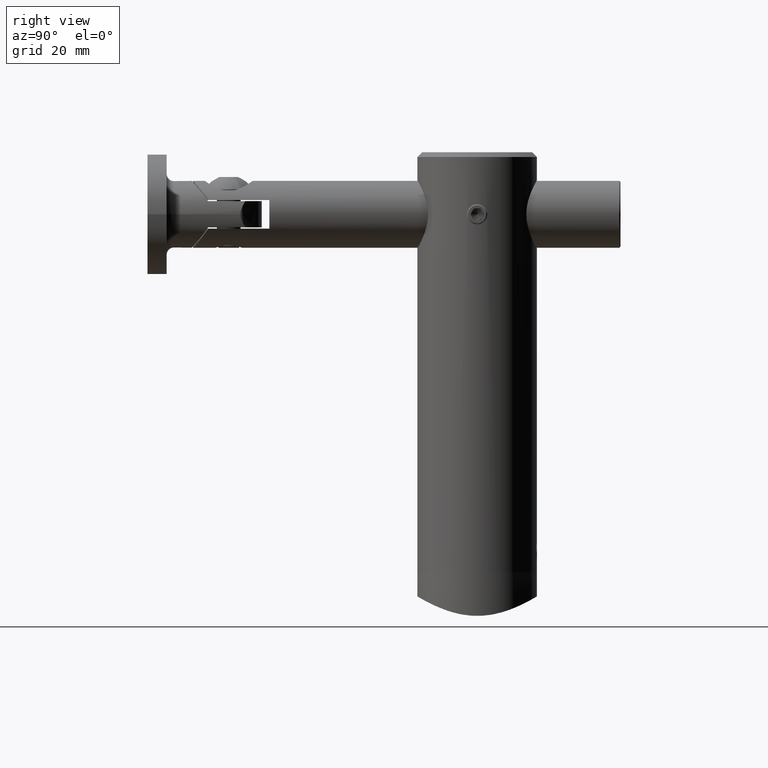
[diagram: clean part render]
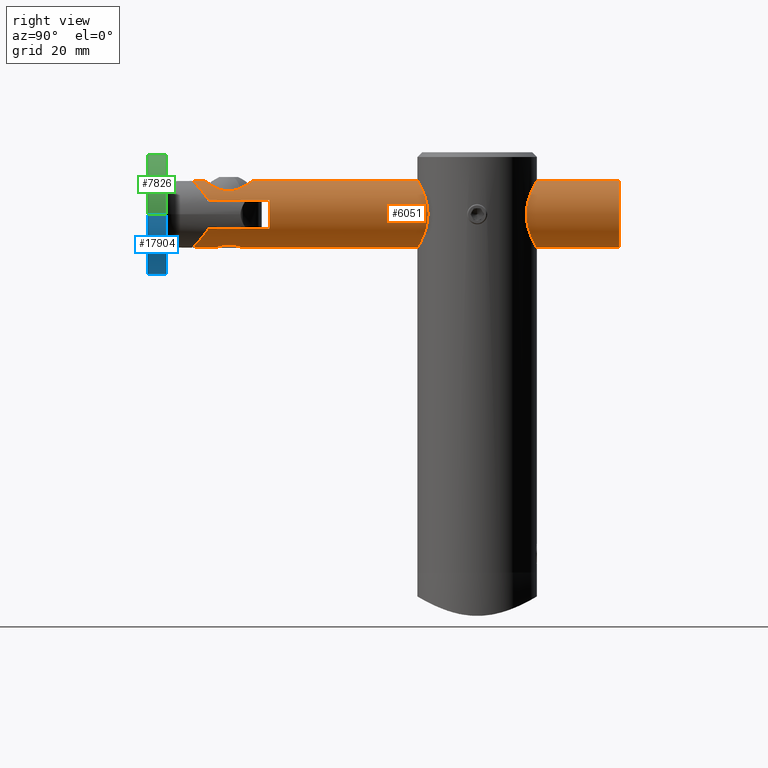
[diagram: same view with three faces highlighted in distinct colors, each labeled with its STEP entity id]
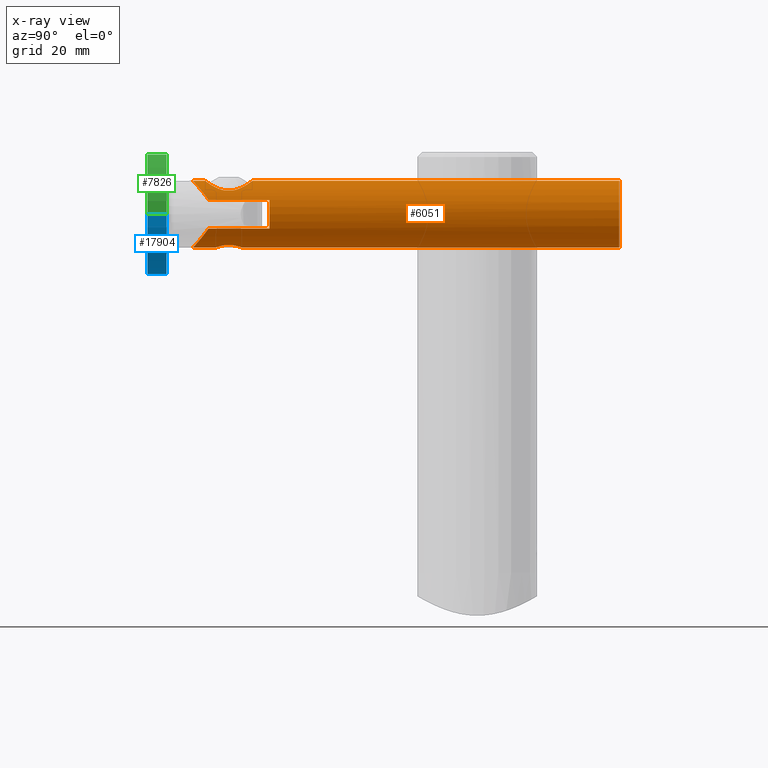
[diagram: x-ray of the same camera — body ghosted, the three highlighted faces saturated]
A machine part, right view with three faces highlighted in distinct colors.
The next image is the same camera in x-ray (body ghosted, the three faces saturated) — at least one of them is partly hidden behind the body in this view.
Their STEP definitions:

[orange] entity #6051 — the highlighted cylindrical surface (edge-blend (fillet) strip) has radius 7 mm, axis along (0, 1, -0).
#78 = CARTESIAN_POINT ( 'NONE',  ( -2.660261905348820122, 81.28017450903226404, -6.474913072020241245 ) ) ;
#250 = VECTOR ( 'NONE', #19612, 1000.000000000000000 ) ;
#344 = B_SPLINE_CURVE_WITH_KNOTS ( 'NONE', 3,
 ( #13487, #10240, #8850, #16676, #2462, #11883, #18332, #11812, #15066, #19991, #19925, #2336, #15144, #12028, #13417, #19855 ),
 .UNSPECIFIED., .F., .F.,
 ( 4, 2, 2, 2, 2, 2, 2, 4 ),
 ( 0.03923391438674807274, 0.04139867185758772106, 0.04248105059300754521, 0.04356342932842736937, 0.04464580806384720046, 0.04572818679926702462, 0.04681056553468684878, 0.04789294427010667293 ),
 .UNSPECIFIED. ) ;
#406 = CARTESIAN_POINT ( 'NONE',  ( 0.000000000000000000, 92.00000000000000000, 0.000000000000000000 ) ) ;
#540 = DIRECTION ( 'NONE',  ( -0.000000000000000000, -1.000000000000000000, -0.000000000000000000 ) ) ;
#542 = EDGE_CURVE ( 'NONE', #17161, #1582, #8996, .T. ) ;
#666 = CARTESIAN_POINT ( 'NONE',  ( -4.839560592229766200, 83.29109193951103407, 5.058218387902203794 ) ) ;
#688 = VERTEX_POINT ( 'NONE', #17183 ) ;
#860 = ORIENTED_EDGE ( 'NONE', *, *, #17682, .T. ) ;
#878 = CARTESIAN_POINT ( 'NONE',  ( -2.294863882844581315, 86.48097171074925882, 6.637556547302423837 ) ) ;
#1079 = CARTESIAN_POINT ( 'NONE',  ( -3.371989372458827017, 88.73576416458342919, 6.143546741527542210 ) ) ;
#1122 = CARTESIAN_POINT ( 'NONE',  ( -2.750000000000002665, 81.81857552232096964, -6.437196594791865678 ) ) ;
#1158 = ORIENTED_EDGE ( 'NONE', *, *, #13284, .T. ) ;
#1192 = EDGE_CURVE ( 'NONE', #8401, #9464, #19249, .T. ) ;
#1283 = CARTESIAN_POINT ( 'NONE',  ( -0.3639287912287958449, 89.49356647764057016, 6.992879130255660769 ) ) ;
#1393 = CARTESIAN_POINT ( 'NONE',  ( -2.731572210612921214, 81.63441088541318891, -6.445153679585613027 ) ) ;
#1450 = CARTESIAN_POINT ( 'NONE',  ( -2.069198651125569999, 80.17994448775027649, -6.688468078876604217 ) ) ;
#1505 = B_SPLINE_CURVE_WITH_KNOTS ( 'NONE', 3,
 ( #7192, #666, #18248, #18189, #8565, #15047, #2250, #5319, #8702, #8632, #878, #14772, #17984, #16448, #2110, #14987 ),
 .UNSPECIFIED., .F., .F.,
 ( 4, 2, 2, 2, 2, 2, 2, 4 ),
 ( 0.000000000000000000, 0.0008914626793863883849, 0.001782925358772776770, 0.002674388038159165263, 0.003565850717545553539, 0.005348776076318302770, 0.006240238755704684975, 0.007131701435091067180 ),
 .UNSPECIFIED. ) ;
#1536 = CARTESIAN_POINT ( 'NONE',  ( -2.660998049289887479, 82.71731310101976931, -6.474610218258280980 ) ) ;
#1582 = VERTEX_POINT ( 'NONE', #19484 ) ;
#1591 = CARTESIAN_POINT ( 'NONE',  ( -6.324555320336759046, 73.50000000000000000, 2.999999999999999112 ) ) ;
#1668 = DIRECTION ( 'NONE',  ( 0.000000000000000000, 1.000000000000000000, 0.000000000000000000 ) ) ;
#1826 = CARTESIAN_POINT ( 'NONE',  ( -6.192418636472707405, 86.41569640618025971, 3.278568588981354281 ) ) ;
#2110 = CARTESIAN_POINT ( 'NONE',  ( -0.2991063256262634362, 87.00000000000000000, 7.000000000000002665 ) ) ;
#2250 = CARTESIAN_POINT ( 'NONE',  ( -3.975033919775524893, 85.04545215921186241, 5.765805760156297310 ) ) ;
#2263 = EDGE_CURVE ( 'NONE', #11354, #10373, #2400, .T. ) ;
#2322 = B_SPLINE_CURVE_WITH_KNOTS ( 'NONE', 3,
 ( #9187, #12215, #2936, #10837, #14083, #2730, #20382, #17200, #20239, #7539, #9114, #10702, #7662, #6154, #10768, #5947, #12491, #15614 ),
 .UNSPECIFIED., .F., .F.,
 ( 4, 2, 2, 2, 2, 2, 2, 2, 4 ),
 ( 0.007131701435091065445, 0.008020981435921283390, 0.008910261436751500466, 0.009799541437581719278, 0.01068882143841193635, 0.01157810143924215343, 0.01246738144007237051, 0.01335666144090258758, 0.01424594144173280640 ),
 .UNSPECIFIED. ) ;
#2336 = CARTESIAN_POINT ( 'NONE',  ( -1.784236511302845996, 89.29972891008506508, -6.777766581327615114 ) ) ;
#2400 = LINE ( 'NONE', #2796, #13826 ) ;
#2411 = CARTESIAN_POINT ( 'NONE',  ( -2.750000000000002665, 82.00000000000000000, -6.437196594791864790 ) ) ;
#2427 = CARTESIAN_POINT ( 'NONE',  ( 0.000000000000000000, 92.00000000000000000, -7.000000000000000000 ) ) ;
#2462 = CARTESIAN_POINT ( 'NONE',  ( -4.914913179432341295, 87.74931631312377078, -4.994203248603346523 ) ) ;
#2474 = LINE ( 'NONE', #15922, #16352 ) ;
#2657 = CARTESIAN_POINT ( 'NONE',  ( -4.468488458371489003, 88.11276474322238528, 5.427275721216008542 ) ) ;
#2730 = CARTESIAN_POINT ( 'NONE',  ( -2.009673372085207355, 77.41248889341466111, 6.711181612046894784 ) ) ;
#2796 = CARTESIAN_POINT ( 'NONE',  ( 0.000000000000000000, 92.00000000000000000, -7.000000000000000000 ) ) ;
#2821 = ORIENTED_EDGE ( 'NONE', *, *, #7420, .T. ) ;
#2836 = CYLINDRICAL_SURFACE ( 'NONE', #17240, 7.000000000000000000 ) ;
#2873 = CARTESIAN_POINT ( 'NONE',  ( -0.7250615779018277918, 89.46813135849437515, 6.964703037725365142 ) ) ;
#2931 = CARTESIAN_POINT ( 'NONE',  ( -2.750000000000002665, 82.18156059774574373, -6.437196594791865678 ) ) ;
#2936 = CARTESIAN_POINT ( 'NONE',  ( -0.5939647591109592506, 77.02649484266727598, 6.981000427148956078 ) ) ;
#2946 = CARTESIAN_POINT ( 'NONE',  ( -6.324555320336759046, 86.22911821679221589, 2.999999999999999556 ) ) ;
#3007 = CARTESIAN_POINT ( 'NONE',  ( -6.044086803178973177, 86.60755666878344528, 3.544251768196102770 ) ) ;
#3015 = EDGE_CURVE ( 'NONE', #1582, #16491, #15297, .T. ) ;
#3141 = CARTESIAN_POINT ( 'NONE',  ( -1.820866196867617637, 84.06844623899382896, -6.760288294050407210 ) ) ;
#3211 = CARTESIAN_POINT ( 'NONE',  ( -3.948399029747518167E-20, 79.25000000000000000, -7.000000000000000000 ) ) ;
#3374 = LINE ( 'NONE', #6475, #6595 ) ;
#3460 = CARTESIAN_POINT ( 'NONE',  ( -1.002435782524943925E-14, 89.50000000000011369, 7.000000000000127010 ) ) ;
#3542 = VECTOR ( 'NONE', #13515, 1000.000000000000000 ) ;
#3821 = FACE_OUTER_BOUND ( 'NONE', #17554, .T. ) ;
#4197 = EDGE_CURVE ( 'NONE', #10373, #9182, #19224, .T. ) ;
#4610 = CARTESIAN_POINT ( 'NONE',  ( 1.208881161452609872E-16, 84.75000000000000000, -7.000000000000000000 ) ) ;
#4666 = CARTESIAN_POINT ( 'NONE',  ( -1.226554768102682935, 84.46789805624285918, -6.893754012384582630 ) ) ;
#4719 = CARTESIAN_POINT ( 'NONE',  ( -1.383155584390583837, 79.61643647624492814, -6.863676793753303862 ) ) ;
#4734 = CARTESIAN_POINT ( 'NONE',  ( -1.681583724287279979, 84.18332563320866768, -6.796730364041209782 ) ) ;
#4802 = CARTESIAN_POINT ( 'NONE',  ( -2.197163682976021271, 83.69146857855012911, -6.651366615402557692 ) ) ;
#4874 = DIRECTION ( 'NONE',  ( 0.000000000000000000, 1.000000000000000000, 0.000000000000000000 ) ) ;
#4942 = ORIENTED_EDGE ( 'NONE', *, *, #16073, .T. ) ;
#5212 = ORIENTED_EDGE ( 'NONE', *, *, #15153, .F. ) ;
#5308 = ORIENTED_EDGE ( 'NONE', *, *, #4197, .T. ) ;
#5319 = CARTESIAN_POINT ( 'NONE',  ( -3.616946265727596366, 85.46314499093718098, 5.996925081911286703 ) ) ;
#5333 = DIRECTION ( 'NONE',  ( 0.000000000000000000, 0.000000000000000000, -1.000000000000000000 ) ) ;
#5585 = CARTESIAN_POINT ( 'NONE',  ( 0.000000000000000000, 0.2499999999999863443, 0.000000000000000000 ) ) ;
#5947 = CARTESIAN_POINT ( 'NONE',  ( -4.756889550426354418, 80.43392821189311803, 5.137250767919630867 ) ) ;
#6051 = ADVANCED_FACE ( 'NONE', ( #3821 ), #2836, .T. ) ;
#6152 = CARTESIAN_POINT ( 'NONE',  ( -0.1837655311793491564, 84.75000000000000000, -7.000000000000000888 ) ) ;
#6154 = CARTESIAN_POINT ( 'NONE',  ( -4.422770578716177070, 79.65138690488552697, 5.428806269226893022 ) ) ;
#6219 = CARTESIAN_POINT ( 'NONE',  ( -1.383913447233347416, 84.38315299823167948, -6.863530507969958450 ) ) ;
#6334 = CARTESIAN_POINT ( 'NONE',  ( -1.222816899428061266, 79.53032863506213346, -6.894394375064748282 ) ) ;
#6396 = CARTESIAN_POINT ( 'NONE',  ( -0.3624502375697711276, 79.26788498787971093, -6.992914525589783103 ) ) ;
#6475 = CARTESIAN_POINT ( 'NONE',  ( -4.898979485566357539, 92.00000000000000000, 4.999999999999999112 ) ) ;
#6595 = VECTOR ( 'NONE', #1668, 1000.000000000000000 ) ;
#6737 = VERTEX_POINT ( 'NONE', #7531 ) ;
#6979 = CARTESIAN_POINT ( 'NONE',  ( 8.572527594031473190E-16, 0.2499999999999863443, 7.000000000000000000 ) ) ;
#7192 = CARTESIAN_POINT ( 'NONE',  ( -4.898979485566356651, 83.00000000000001421, 5.000000000000000000 ) ) ;
#7251 = EDGE_CURVE ( 'NONE', #11719, #688, #19944, .T. ) ;
#7420 = EDGE_CURVE ( 'NONE', #9710, #6737, #1505, .T. ) ;
#7531 = CARTESIAN_POINT ( 'NONE',  ( 8.572527598450923430E-16, 87.00000000000001421, 7.000000000000000000 ) ) ;
#7539 = CARTESIAN_POINT ( 'NONE',  ( -3.418568646372840636, 78.34067046350246244, 6.113182993975327051 ) ) ;
#7589 = CARTESIAN_POINT ( 'NONE',  ( 8.572527594031473190E-16, 92.00000000000000000, 7.000000000000000000 ) ) ;
#7662 = CARTESIAN_POINT ( 'NONE',  ( -4.135962263691839169, 79.17675732254244281, 5.650367532654112956 ) ) ;
#7707 = LINE ( 'NONE', #19267, #10678 ) ;
#7781 = CARTESIAN_POINT ( 'NONE',  ( -2.382758144454903526, 80.61554951720019346, -6.582817980364521482 ) ) ;
#7973 = CARTESIAN_POINT ( 'NONE',  ( -2.607548095123841225, 81.10774105016133717, -6.496639385793701038 ) ) ;
#8149 = LINE ( 'NONE', #7589, #20277 ) ;
#8190 = VERTEX_POINT ( 'NONE', #20156 ) ;
#8401 = VERTEX_POINT ( 'NONE', #3460 ) ;
#8565 = CARTESIAN_POINT ( 'NONE',  ( -4.425366518078629241, 84.34397634863468340, 5.426733022158265030 ) ) ;
#8611 = DIRECTION ( 'NONE',  ( -0.000000000000000000, 1.000000000000000000, -0.000000000000000000 ) ) ;
#8632 = CARTESIAN_POINT ( 'NONE',  ( -2.776700698999280625, 86.19534894629951793, 6.443739082997176126 ) ) ;
#8692 = EDGE_CURVE ( 'NONE', #11998, #17161, #344, .T. ) ;
#8702 = CARTESIAN_POINT ( 'NONE',  ( -3.418808725368912782, 85.65916681603903271, 6.113076715920836790 ) ) ;
#8850 = CARTESIAN_POINT ( 'NONE',  ( -5.732979968554462680, 86.99398891783921783, -4.063787233538065813 ) ) ;
#8977 = CARTESIAN_POINT ( 'NONE',  ( -2.448555013356692012, 89.11129496294373098, 6.567222301486645542 ) ) ;
#8996 = LINE ( 'NONE', #2427, #3542 ) ;
#9114 = CARTESIAN_POINT ( 'NONE',  ( -3.617236538122536427, 78.53717037875250639, 5.996745441797393994 ) ) ;
#9182 = VERTEX_POINT ( 'NONE', #6979 ) ;
#9187 = CARTESIAN_POINT ( 'NONE',  ( 8.572527589611736987E-16, 77.00000000000000000, 7.000000000000000000 ) ) ;
#9272 = CARTESIAN_POINT ( 'NONE',  ( 0.000000000000000000, 89.49999999999998579, -7.000000000000000000 ) ) ;
#9424 = LINE ( 'NONE', #16861, #250 ) ;
#9464 = VERTEX_POINT ( 'NONE', #2946 ) ;
#9670 = ORIENTED_EDGE ( 'NONE', *, *, #542, .T. ) ;
#9710 = VERTEX_POINT ( 'NONE', #9797 ) ;
#9797 = CARTESIAN_POINT ( 'NONE',  ( -4.898979485566356651, 83.00000000000001421, 5.000000000000000000 ) ) ;
#10240 = CARTESIAN_POINT ( 'NONE',  ( -6.060097243788924892, 86.60253540608765377, -3.557526578345540536 ) ) ;
#10373 = VERTEX_POINT ( 'NONE', #13490 ) ;
#10493 = CARTESIAN_POINT ( 'NONE',  ( -1.002435782524943925E-14, 89.50000000000011369, 7.000000000000127010 ) ) ;
#10561 = CARTESIAN_POINT ( 'NONE',  ( -2.766472260337530464, 88.99691965761564916, 6.438952564361060560 ) ) ;
#10678 = VECTOR ( 'NONE', #4874, 1000.000000000000000 ) ;
#10692 = ORIENTED_EDGE ( 'NONE', *, *, #7251, .T. ) ;
#10702 = CARTESIAN_POINT ( 'NONE',  ( -3.975101583808372308, 78.95465001076691181, 5.765754370839145437 ) ) ;
#10768 = CARTESIAN_POINT ( 'NONE',  ( -4.549074066972394803, 79.90560171560923663, 5.322148887493238334 ) ) ;
#10837 = CARTESIAN_POINT ( 'NONE',  ( -1.179668351931415504, 77.13205071261702983, 6.906196035327339722 ) ) ;
#11082 = CARTESIAN_POINT ( 'NONE',  ( -1.817296491785143076, 79.92837778867962584, -6.761258888765953046 ) ) ;
#11150 = B_SPLINE_CURVE_WITH_KNOTS ( 'NONE', 3,
 ( #16915, #1122, #1393, #78, #7973, #20492, #7781, #20430, #1450, #11082, #18780, #4719, #6334, #17383, #20361, #6396, #14124, #14191 ),
 .UNSPECIFIED., .F., .F.,
 ( 4, 2, 2, 2, 2, 2, 2, 2, 4 ),
 ( 0.004344734282260766245, 0.004887418899408002212, 0.005430103516555237313, 0.005972788133702473280, 0.006515472750849708380, 0.007058157367996944348, 0.007600841985144178581, 0.008143526602291414548, 0.008686211219438648781 ),
 .UNSPECIFIED. ) ;
#11244 = CARTESIAN_POINT ( 'NONE',  ( -4.929663724319142126, 87.75544120604618570, 5.008012638528537508 ) ) ;
#11354 = VERTEX_POINT ( 'NONE', #3211 ) ;
#11719 = VERTEX_POINT ( 'NONE', #1591 ) ;
#11811 = CARTESIAN_POINT ( 'NONE',  ( -6.324555320336759934, 86.22911821679221589, -3.000000000000000000 ) ) ;
#11812 = CARTESIAN_POINT ( 'NONE',  ( -3.662499520547849219, 88.58706227998003158, -5.974205645090258088 ) ) ;
#11883 = CARTESIAN_POINT ( 'NONE',  ( -4.448411464698285300, 88.10293658295209696, -5.413877823746929607 ) ) ;
#11906 = CARTESIAN_POINT ( 'NONE',  ( 0.000000000000000000, 73.50000000000000000, 0.000000000000000000 ) ) ;
#11998 = VERTEX_POINT ( 'NONE', #11811 ) ;
#12028 = CARTESIAN_POINT ( 'NONE',  ( -0.7253705644734330660, 89.47425646927403875, -6.971528620492262185 ) ) ;
#12078 = CARTESIAN_POINT ( 'NONE',  ( -1.432384606724566911, 89.37480022524006529, 6.861169559409958651 ) ) ;
#12149 = CARTESIAN_POINT ( 'NONE',  ( -3.661496776243679641, 88.58764268060313896, 5.974873979569122362 ) ) ;
#12215 = CARTESIAN_POINT ( 'NONE',  ( -0.2983739865412365355, 77.00000000000000000, 7.000000000000002665 ) ) ;
#12488 = CARTESIAN_POINT ( 'NONE',  ( -2.732195300017660866, 82.36132747720122893, -6.444889210782489997 ) ) ;
#12491 = CARTESIAN_POINT ( 'NONE',  ( -4.839697460131366924, 80.70957857353114662, 5.058084285293765525 ) ) ;
#12827 = CARTESIAN_POINT ( 'NONE',  ( -6.324555320336759046, 86.22911821679221589, 2.999999999999999556 ) ) ;
#12852 = AXIS2_PLACEMENT_3D ( 'NONE', #11906, #15169, #15244 ) ;
#13284 = EDGE_CURVE ( 'NONE', #688, #11998, #7707, .T. ) ;
#13410 = ORIENTED_EDGE ( 'NONE', *, *, #17619, .F. ) ;
#13417 = CARTESIAN_POINT ( 'NONE',  ( -0.3670011454034160514, 89.50000000000000000, -7.000000000000000000 ) ) ;
#13487 = CARTESIAN_POINT ( 'NONE',  ( -6.324555320336759934, 86.22911821679221589, -3.000000000000000000 ) ) ;
#13490 = CARTESIAN_POINT ( 'NONE',  ( 0.000000000000000000, 0.2499999999999863443, -7.000000000000000000 ) ) ;
#13515 = DIRECTION ( 'NONE',  ( -0.000000000000000000, -1.000000000000000000, -0.000000000000000000 ) ) ;
#13799 = EDGE_CURVE ( 'NONE', #16491, #11354, #11150, .T. ) ;
#13826 = VECTOR ( 'NONE', #20103, 1000.000000000000000 ) ;
#13953 = CARTESIAN_POINT ( 'NONE',  ( -0.9034506719393678997, 89.44921930571358359, 6.943746843708455962 ) ) ;
#14083 = CARTESIAN_POINT ( 'NONE',  ( -1.466010853969592187, 77.21096487885552051, 6.850515153504008303 ) ) ;
#14109 = ORIENTED_EDGE ( 'NONE', *, *, #8692, .T. ) ;
#14124 = CARTESIAN_POINT ( 'NONE',  ( -0.1808599344163454026, 79.25000000000002842, -7.000000000000001776 ) ) ;
#14191 = CARTESIAN_POINT ( 'NONE',  ( -3.948399029747518167E-20, 79.25000000000000000, -7.000000000000000000 ) ) ;
#14210 = CARTESIAN_POINT ( 'NONE',  ( -2.750000000000002665, 82.00000000000000000, -6.437196594791864790 ) ) ;
#14509 = DIRECTION ( 'NONE',  ( -0.000000000000000000, -1.000000000000000000, -0.000000000000000000 ) ) ;
#14772 = CARTESIAN_POINT ( 'NONE',  ( -1.468537120180438027, 86.78850453220861993, 6.850130510910550363 ) ) ;
#14813 = AXIS2_PLACEMENT_3D ( 'NONE', #5585, #8611, #16641 ) ;
#14843 = VERTEX_POINT ( 'NONE', #17010 ) ;
#14987 = CARTESIAN_POINT ( 'NONE',  ( 8.572527598450923430E-16, 87.00000000000001421, 7.000000000000000000 ) ) ;
#15047 = CARTESIAN_POINT ( 'NONE',  ( -4.136608555503009654, 84.82251015956182982, 5.649935377652886892 ) ) ;
#15066 = CARTESIAN_POINT ( 'NONE',  ( -3.372907361399431370, 88.73535340893089085, -6.143081379966544908 ) ) ;
#15144 = CARTESIAN_POINT ( 'NONE',  ( -1.433385987779158599, 89.37467737474607077, -6.861033331225378618 ) ) ;
#15153 = EDGE_CURVE ( 'NONE', #8401, #6737, #8149, .T. ) ;
#15169 = DIRECTION ( 'NONE',  ( -0.000000000000000000, -1.000000000000000000, -0.000000000000000000 ) ) ;
#15244 = DIRECTION ( 'NONE',  ( 0.000000000000000000, 0.000000000000000000, -1.000000000000000000 ) ) ;
#15297 = B_SPLINE_CURVE_WITH_KNOTS ( 'NONE', 3,
 ( #4610, #6152, #17330, #15760, #20304, #4666, #6219, #4734, #3141, #4802, #15686, #17270, #1536, #12488, #2931, #14210 ),
 .UNSPECIFIED., .F., .F.,
 ( 4, 2, 2, 2, 2, 2, 2, 4 ),
 ( 1.173165976729920230E-19, 0.0005430917852825886249, 0.001086183570565177250, 0.001629275355847766091, 0.002172367141130354500, 0.003258550711695560806, 0.003801642496978163092, 0.004344734282260766245 ),
 .UNSPECIFIED. ) ;
#15614 = CARTESIAN_POINT ( 'NONE',  ( -4.898979485566356651, 80.99999999999998579, 5.000000000000000000 ) ) ;
#15686 = CARTESIAN_POINT ( 'NONE',  ( -2.400855085713080150, 83.38795092289986144, -6.577058515423804153 ) ) ;
#15760 = CARTESIAN_POINT ( 'NONE',  ( -0.7183405623909994153, 84.66066170745821751, -6.965310139836327963 ) ) ;
#15922 = CARTESIAN_POINT ( 'NONE',  ( -6.324555320336759046, 92.00000000000000000, 3.000000000000001776 ) ) ;
#16073 = EDGE_CURVE ( 'NONE', #14843, #9710, #3374, .T. ) ;
#16352 = VECTOR ( 'NONE', #14509, 1000.000000000000000 ) ;
#16401 = ORIENTED_EDGE ( 'NONE', *, *, #1192, .T. ) ;
#16448 = CARTESIAN_POINT ( 'NONE',  ( -0.6024487183310486271, 86.97240106011895477, 6.980213212930909350 ) ) ;
#16491 = VERTEX_POINT ( 'NONE', #2411 ) ;
#16641 = DIRECTION ( 'NONE',  ( 0.000000000000000000, 0.000000000000000000, 1.000000000000000000 ) ) ;
#16676 = CARTESIAN_POINT ( 'NONE',  ( -5.132900518434433401, 87.56307380311160671, -4.769558550608638647 ) ) ;
#16835 = EDGE_CURVE ( 'NONE', #9464, #11719, #2474, .T. ) ;
#16861 = CARTESIAN_POINT ( 'NONE',  ( 8.572527594031473190E-16, 92.00000000000000000, 7.000000000000000000 ) ) ;
#16915 = CARTESIAN_POINT ( 'NONE',  ( -2.750000000000002665, 82.00000000000000000, -6.437196594791864790 ) ) ;
#17010 = CARTESIAN_POINT ( 'NONE',  ( -4.898979485566356651, 80.99999999999998579, 5.000000000000000000 ) ) ;
#17067 = CARTESIAN_POINT ( 'NONE',  ( -0.1807810941704633412, 89.49999999999995737, 7.000000000000024869 ) ) ;
#17161 = VERTEX_POINT ( 'NONE', #9272 ) ;
#17183 = CARTESIAN_POINT ( 'NONE',  ( -6.324555320336759046, 73.50000000000000000, -3.000000000000000888 ) ) ;
#17200 = CARTESIAN_POINT ( 'NONE',  ( -2.763207991384558415, 77.82321628247673573, 6.436924150252830046 ) ) ;
#17206 = CARTESIAN_POINT ( 'NONE',  ( -5.713515917636387442, 86.99238284883125516, 4.055667853712758841 ) ) ;
#17240 = AXIS2_PLACEMENT_3D ( 'NONE', #406, #540, #5333 ) ;
#17270 = CARTESIAN_POINT ( 'NONE',  ( -2.607270100713122485, 82.89255019392226131, -6.496737149246783360 ) ) ;
#17330 = CARTESIAN_POINT ( 'NONE',  ( -0.3641098513039578433, 84.73176827371835884, -6.992780743299934265 ) ) ;
#17383 = CARTESIAN_POINT ( 'NONE',  ( -0.8922602932492610384, 79.39262020614341964, -6.944913717069636228 ) ) ;
#17554 = EDGE_LOOP ( 'NONE', ( #5212, #16401, #18979, #10692, #1158, #14109, #9670, #17856, #17622, #20063, #5308, #13410, #860, #4942, #2821 ) ) ;
#17619 = EDGE_CURVE ( 'NONE', #8190, #9182, #9424, .T. ) ;
#17622 = ORIENTED_EDGE ( 'NONE', *, *, #13799, .T. ) ;
#17682 = EDGE_CURVE ( 'NONE', #8190, #14843, #2322, .T. ) ;
#17689 = CARTESIAN_POINT ( 'NONE',  ( -5.530444510209709286, 87.18624738657372575, 4.302281635961027639 ) ) ;
#17856 = ORIENTED_EDGE ( 'NONE', *, *, #3015, .T. ) ;
#17984 = CARTESIAN_POINT ( 'NONE',  ( -1.185247000890846003, 86.86650863636042175, 6.905179976153642762 ) ) ;
#18189 = CARTESIAN_POINT ( 'NONE',  ( -4.549983960369623937, 84.09224821940097172, 5.321353031385373633 ) ) ;
#18248 = CARTESIAN_POINT ( 'NONE',  ( -4.756754455005334670, 83.56625148235985989, 5.137357217387365615 ) ) ;
#18332 = CARTESIAN_POINT ( 'NONE',  ( -4.198846354303658046, 88.27142719435630625, -5.610233963106386668 ) ) ;
#18463 = CARTESIAN_POINT ( 'NONE',  ( -1.777596126394138665, 89.30143941221298576, 6.779674212084698226 ) ) ;
#18780 = CARTESIAN_POINT ( 'NONE',  ( -1.680266367857811804, 79.81569247232614828, -6.797049612352729753 ) ) ;
#18979 = ORIENTED_EDGE ( 'NONE', *, *, #16835, .T. ) ;
#19224 = CIRCLE ( 'NONE', #14813, 7.000000000000000000 ) ;
#19249 = B_SPLINE_CURVE_WITH_KNOTS ( 'NONE', 3,
 ( #10493, #17067, #1283, #2873, #13953, #12078, #18463, #8977, #10561, #1079, #12149, #2657, #11244, #17689, #17206, #3007, #1826, #12827 ),
 .UNSPECIFIED., .F., .F.,
 ( 4, 2, 2, 2, 2, 2, 2, 2, 4 ),
 ( 0.02393724909843878215, 0.02447706354892944733, 0.02501687799942011250, 0.02609650690040143592, 0.02717613580138275933, 0.02825576470236407928, 0.03041502250432672610, 0.03149465140530804952, 0.03257428030628937293 ),
 .UNSPECIFIED. ) ;
#19267 = CARTESIAN_POINT ( 'NONE',  ( -6.324555320336759934, 92.00000000000000000, -2.999999999999998224 ) ) ;
#19484 = CARTESIAN_POINT ( 'NONE',  ( 1.208881161452609872E-16, 84.75000000000000000, -7.000000000000000000 ) ) ;
#19612 = DIRECTION ( 'NONE',  ( -0.000000000000000000, -1.000000000000000000, -0.000000000000000000 ) ) ;
#19855 = CARTESIAN_POINT ( 'NONE',  ( 0.000000000000000000, 89.49999999999998579, -7.000000000000000000 ) ) ;
#19925 = CARTESIAN_POINT ( 'NONE',  ( -2.449066440066212991, 89.11097684524152385, -6.566863279478944548 ) ) ;
#19944 = CIRCLE ( 'NONE', #12852, 7.000000000000000000 ) ;
#19991 = CARTESIAN_POINT ( 'NONE',  ( -2.766140702632292392, 88.99707747505752309, -6.439131814360929518 ) ) ;
#20063 = ORIENTED_EDGE ( 'NONE', *, *, #2263, .T. ) ;
#20103 = DIRECTION ( 'NONE',  ( -0.000000000000000000, -1.000000000000000000, -0.000000000000000000 ) ) ;
#20156 = CARTESIAN_POINT ( 'NONE',  ( 8.572527589611736987E-16, 77.00000000000000000, 7.000000000000000000 ) ) ;
#20161 = DIRECTION ( 'NONE',  ( -0.000000000000000000, -1.000000000000000000, -0.000000000000000000 ) ) ;
#20239 = CARTESIAN_POINT ( 'NONE',  ( -2.991776029221044020, 77.98420861627187151, 6.333000402555721386 ) ) ;
#20277 = VECTOR ( 'NONE', #20161, 1000.000000000000000 ) ;
#20304 = CARTESIAN_POINT ( 'NONE',  ( -0.8940967495373632890, 84.60682727038623341, -6.944701000395239632 ) ) ;
#20361 = CARTESIAN_POINT ( 'NONE',  ( -0.7203941514829830250, 79.33976413063115274, -6.965145799150803896 ) ) ;
#20382 = CARTESIAN_POINT ( 'NONE',  ( -2.271900956814453032, 77.53689495204912419, 6.626294361268985966 ) ) ;
#20430 = CARTESIAN_POINT ( 'NONE',  ( -2.184210407489944661, 80.31968324114068025, -6.651334740741077667 ) ) ;
#20492 = CARTESIAN_POINT ( 'NONE',  ( -2.467684693631087445, 80.77282219920256523, -6.551042865853406560 ) ) ;

[blue] entity #17904 — the highlighted cylindrical surface (partial cylindrical patch) has radius 12.5 mm, axis along (0, -1, 0).
#38 = CARTESIAN_POINT ( 'NONE',  ( 12.49999999999999645, -2.000000000000001776, -20.00000000000000355 ) ) ;
#582 = AXIS2_PLACEMENT_3D ( 'NONE', #11298, #16151, #5147 ) ;
#809 = ORIENTED_EDGE ( 'NONE', *, *, #7083, .F. ) ;
#2442 = VERTEX_POINT ( 'NONE', #20321 ) ;
#2617 = DIRECTION ( 'NONE',  ( 0.000000000000000000, 1.000000000000000000, 0.000000000000000000 ) ) ;
#3791 = DIRECTION ( 'NONE',  ( -0.000000000000000000, 1.000000000000000000, -0.000000000000000000 ) ) ;
#3974 = AXIS2_PLACEMENT_3D ( 'NONE', #6546, #12807, #5002 ) ;
#3998 = EDGE_CURVE ( 'NONE', #18315, #12723, #12783, .T. ) ;
#5002 = DIRECTION ( 'NONE',  ( 0.000000000000000000, 0.000000000000000000, -1.000000000000000000 ) ) ;
#5147 = DIRECTION ( 'NONE',  ( 0.000000000000000000, 0.000000000000000000, 1.000000000000000000 ) ) ;
#6205 = EDGE_CURVE ( 'NONE', #18315, #18404, #17456, .T. ) ;
#6546 = CARTESIAN_POINT ( 'NONE',  ( 0.000000000000000000, 2.000000000000001776, -20.00000000000000355 ) ) ;
#6762 = DIRECTION ( 'NONE',  ( 0.000000000000000000, 0.000000000000000000, 1.000000000000000000 ) ) ;
#7083 = EDGE_CURVE ( 'NONE', #2442, #18404, #15512, .T. ) ;
#7202 = CARTESIAN_POINT ( 'NONE',  ( 0.000000000000000000, 0.000000000000000000, -32.50000000000000000 ) ) ;
#9728 = CARTESIAN_POINT ( 'NONE',  ( 0.000000000000000000, -2.000000000000001776, -20.00000000000000355 ) ) ;
#11298 = CARTESIAN_POINT ( 'NONE',  ( 0.000000000000000000, 2.000000000000001776, -20.00000000000000355 ) ) ;
#11355 = CYLINDRICAL_SURFACE ( 'NONE', #582, 12.50000000000000000 ) ;
#11567 = DIRECTION ( 'NONE',  ( -0.000000000000000000, -1.000000000000000000, -0.000000000000000000 ) ) ;
#12723 = VERTEX_POINT ( 'NONE', #38 ) ;
#12783 = CIRCLE ( 'NONE', #18418, 12.50000000000000000 ) ;
#12807 = DIRECTION ( 'NONE',  ( -0.000000000000000000, 1.000000000000000000, -0.000000000000000000 ) ) ;
#13237 = VECTOR ( 'NONE', #3791, 1000.000000000000000 ) ;
#13689 = ORIENTED_EDGE ( 'NONE', *, *, #18879, .F. ) ;
#15409 = ORIENTED_EDGE ( 'NONE', *, *, #3998, .F. ) ;
#15512 = CIRCLE ( 'NONE', #3974, 12.49999999999999645 ) ;
#16151 = DIRECTION ( 'NONE',  ( 0.000000000000000000, 1.000000000000000000, 0.000000000000000000 ) ) ;
#16815 = LINE ( 'NONE', #16894, #19531 ) ;
#16894 = CARTESIAN_POINT ( 'NONE',  ( 12.49999999999999645, 2.000000000000001776, -20.00000000000000355 ) ) ;
#17403 = ORIENTED_EDGE ( 'NONE', *, *, #6205, .T. ) ;
#17456 = LINE ( 'NONE', #7202, #13237 ) ;
#17904 = ADVANCED_FACE ( 'NONE', ( #19067 ), #11355, .T. ) ;
#18031 = EDGE_LOOP ( 'NONE', ( #15409, #17403, #809, #13689 ) ) ;
#18315 = VERTEX_POINT ( 'NONE', #19150 ) ;
#18404 = VERTEX_POINT ( 'NONE', #18862 ) ;
#18418 = AXIS2_PLACEMENT_3D ( 'NONE', #9728, #11567, #6762 ) ;
#18862 = CARTESIAN_POINT ( 'NONE',  ( 0.000000000000000000, 2.000000000000001776, -32.50000000000000000 ) ) ;
#18879 = EDGE_CURVE ( 'NONE', #12723, #2442, #16815, .T. ) ;
#19067 = FACE_OUTER_BOUND ( 'NONE', #18031, .T. ) ;
#19150 = CARTESIAN_POINT ( 'NONE',  ( 0.000000000000000000, -2.000000000000001776, -32.50000000000000000 ) ) ;
#19531 = VECTOR ( 'NONE', #2617, 1000.000000000000000 ) ;
#20321 = CARTESIAN_POINT ( 'NONE',  ( 12.49999999999999645, 2.000000000000001776, -20.00000000000000355 ) ) ;

[green] entity #7826 — the highlighted cylindrical surface (partial cylindrical patch) has radius 12.5 mm, axis along (-0, 1, -0).
#1097 = EDGE_CURVE ( 'NONE', #1425, #18315, #4015, .T. ) ;
#1425 = VERTEX_POINT ( 'NONE', #7339 ) ;
#1548 = CARTESIAN_POINT ( 'NONE',  ( 0.000000000000000000, 2.000000000000001776, -20.00000000000000355 ) ) ;
#1922 = DIRECTION ( 'NONE',  ( 0.000000000000000000, -1.000000000000000000, 0.000000000000000000 ) ) ;
#1959 = EDGE_LOOP ( 'NONE', ( #16590, #3292, #20108, #2812 ) ) ;
#2247 = CARTESIAN_POINT ( 'NONE',  ( 0.000000000000000000, -2.000000000000001776, -20.00000000000000355 ) ) ;
#2812 = ORIENTED_EDGE ( 'NONE', *, *, #18090, .F. ) ;
#3148 = DIRECTION ( 'NONE',  ( 0.000000000000000000, -1.000000000000000000, 0.000000000000000000 ) ) ;
#3292 = ORIENTED_EDGE ( 'NONE', *, *, #1097, .F. ) ;
#3744 = CARTESIAN_POINT ( 'NONE',  ( 0.000000000000000000, 2.000000000000001776, -20.00000000000000355 ) ) ;
#3791 = DIRECTION ( 'NONE',  ( -0.000000000000000000, 1.000000000000000000, -0.000000000000000000 ) ) ;
#4015 = CIRCLE ( 'NONE', #8838, 12.50000000000000000 ) ;
#6205 = EDGE_CURVE ( 'NONE', #18315, #18404, #17456, .T. ) ;
#6584 = AXIS2_PLACEMENT_3D ( 'NONE', #3744, #19598, #14803 ) ;
#6806 = LINE ( 'NONE', #10879, #7807 ) ;
#7202 = CARTESIAN_POINT ( 'NONE',  ( 0.000000000000000000, 0.000000000000000000, -32.50000000000000000 ) ) ;
#7339 = CARTESIAN_POINT ( 'NONE',  ( -12.50000000000001066, -2.000000000000001776, -20.00000000000000355 ) ) ;
#7807 = VECTOR ( 'NONE', #1922, 1000.000000000000000 ) ;
#7826 = ADVANCED_FACE ( 'NONE', ( #10026 ), #9297, .T. ) ;
#8377 = EDGE_CURVE ( 'NONE', #17541, #1425, #6806, .T. ) ;
#8838 = AXIS2_PLACEMENT_3D ( 'NONE', #2247, #19711, #12011 ) ;
#9297 = CYLINDRICAL_SURFACE ( 'NONE', #18177, 12.49999999999999645 ) ;
#10026 = FACE_OUTER_BOUND ( 'NONE', #1959, .T. ) ;
#10879 = CARTESIAN_POINT ( 'NONE',  ( -12.50000000000001066, 2.000000000000001776, -20.00000000000000355 ) ) ;
#12011 = DIRECTION ( 'NONE',  ( 8.881784197001252323E-16, 0.000000000000000000, 1.000000000000000000 ) ) ;
#12144 = CARTESIAN_POINT ( 'NONE',  ( -12.50000000000001066, 2.000000000000001776, -20.00000000000000355 ) ) ;
#13237 = VECTOR ( 'NONE', #3791, 1000.000000000000000 ) ;
#14220 = DIRECTION ( 'NONE',  ( 0.000000000000000000, 0.000000000000000000, -1.000000000000000000 ) ) ;
#14803 = DIRECTION ( 'NONE',  ( 0.000000000000000000, 0.000000000000000000, -1.000000000000000000 ) ) ;
#16590 = ORIENTED_EDGE ( 'NONE', *, *, #6205, .F. ) ;
#16843 = CIRCLE ( 'NONE', #6584, 12.49999999999999645 ) ;
#17456 = LINE ( 'NONE', #7202, #13237 ) ;
#17541 = VERTEX_POINT ( 'NONE', #12144 ) ;
#18090 = EDGE_CURVE ( 'NONE', #18404, #17541, #16843, .T. ) ;
#18177 = AXIS2_PLACEMENT_3D ( 'NONE', #1548, #3148, #14220 ) ;
#18315 = VERTEX_POINT ( 'NONE', #19150 ) ;
#18404 = VERTEX_POINT ( 'NONE', #18862 ) ;
#18862 = CARTESIAN_POINT ( 'NONE',  ( 0.000000000000000000, 2.000000000000001776, -32.50000000000000000 ) ) ;
#19150 = CARTESIAN_POINT ( 'NONE',  ( 0.000000000000000000, -2.000000000000001776, -32.50000000000000000 ) ) ;
#19598 = DIRECTION ( 'NONE',  ( -0.000000000000000000, 1.000000000000000000, -0.000000000000000000 ) ) ;
#19711 = DIRECTION ( 'NONE',  ( -0.000000000000000000, -1.000000000000000000, -0.000000000000000000 ) ) ;
#20108 = ORIENTED_EDGE ( 'NONE', *, *, #8377, .F. ) ;